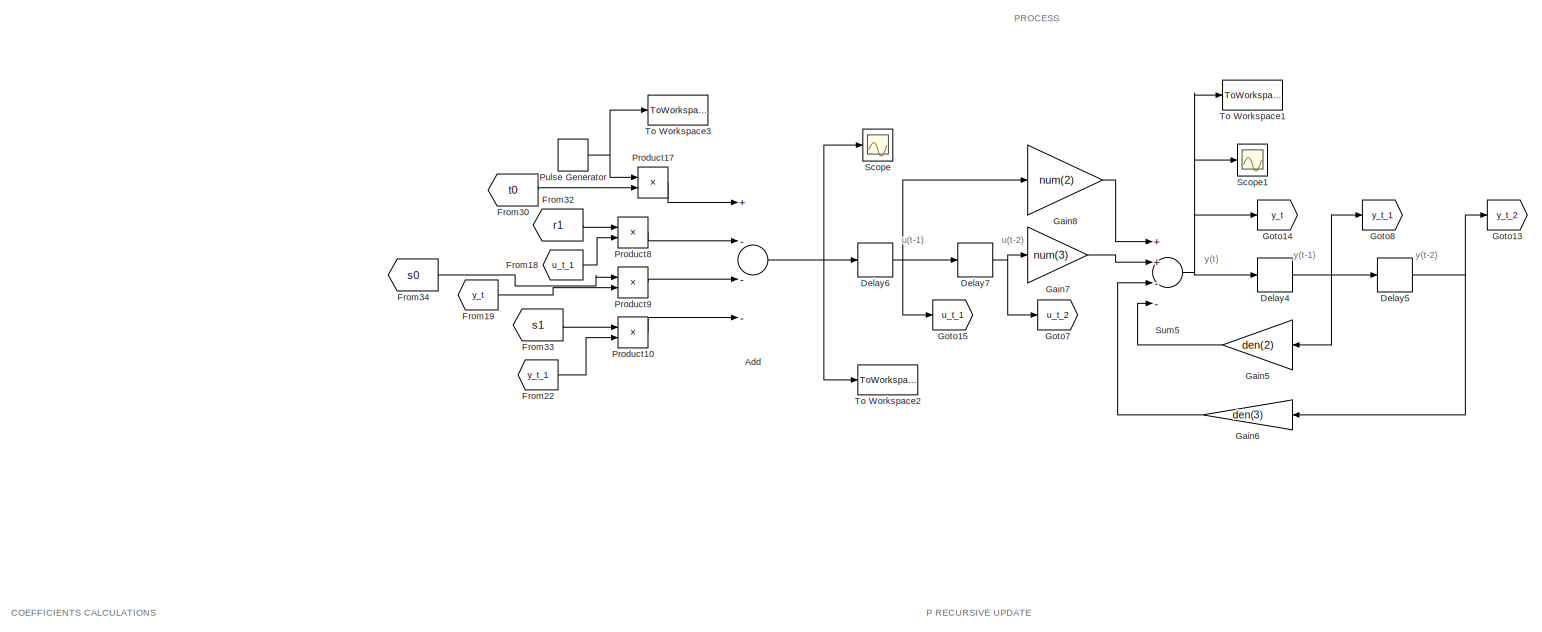
[diagram: root canvas - part 1/4, top left region]
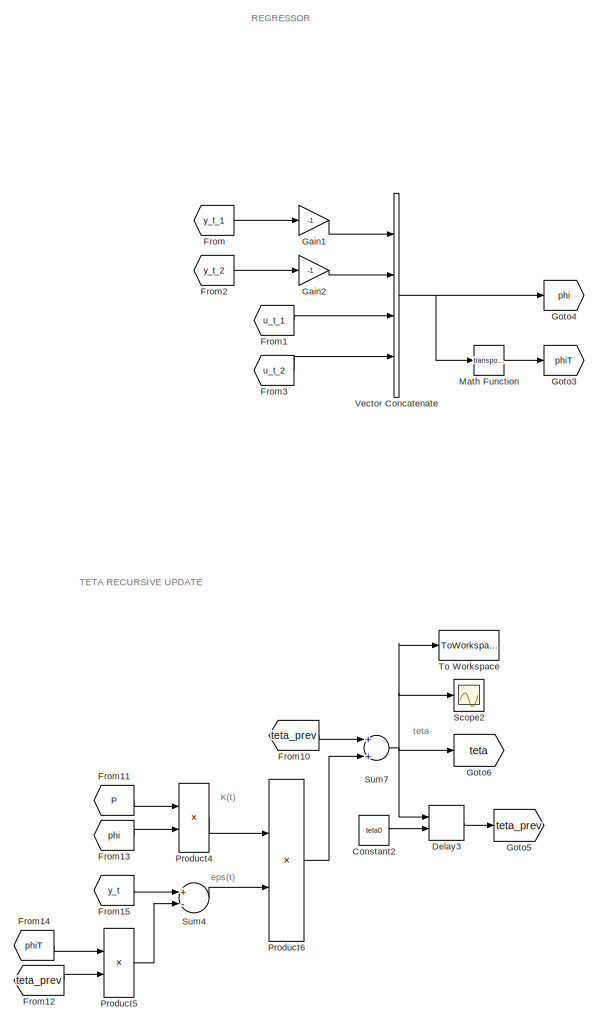
[diagram: root canvas - part 2/4, top right region]
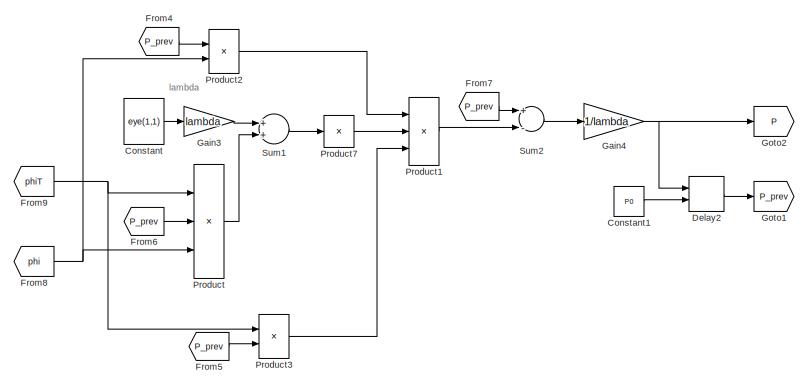
[diagram: root canvas - part 3/4, central region]
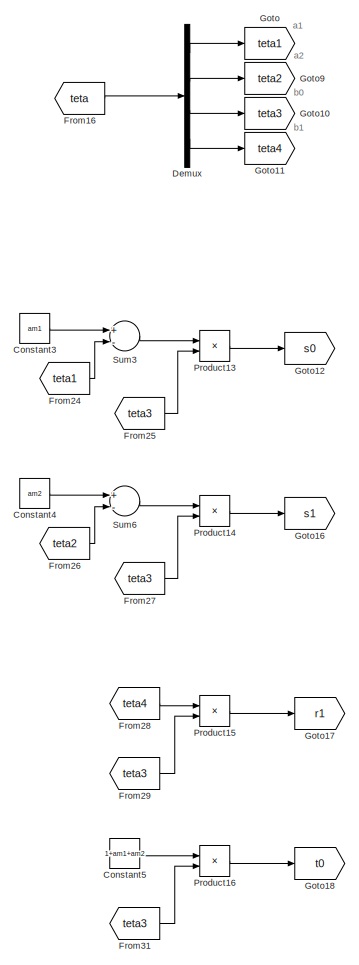
[diagram: root canvas - part 4/4, bottom left region]
MODEL slx_5befd267f8d2
KIND model
CONFIG AbsTol = auto
CONFIG EnableMultiTasking = off
CONFIG FixedStep = auto
CONFIG MaxStep = auto
CONFIG MinStep = auto
CONFIG RelTol = 1e-3
CONFIG SampleTimeConstraint = Unconstrained
CONFIG Solver = VariableStepAuto
CONFIG SolverName = VariableStepAuto
CONFIG StartTime = 0.0
CONFIG StopTime = 200
BLOCK [Sum] Add
  InputSameDT = off
  Inputs = +---
  OutDataTypeStr = Inherit: Inherit via internal rule
  Ports = [4, 1]
  SaturateOnIntegerOverflow = off
BLOCK [Constant] Constant
  Value = eye(1,1)
BLOCK [Constant] Constant1
  Value = P0
BLOCK [Constant] Constant2
  Value = teta0
BLOCK [Constant] Constant3
  Value = am1
BLOCK [Constant] Constant4
  Value = am2
BLOCK [Constant] Constant5
  Value = 1+am1+am2
BLOCK [Delay] Delay2
  DelayLength = 1
  InitialCondition = 0
  InitialConditionSource = Input port
  InputPortMap = u0,p4
  Ports = [2, 1]
BLOCK [Delay] Delay3
  DelayLength = 1
  InitialCondition = 0
  InitialConditionSource = Input port
  InputPortMap = u0,p4
  Ports = [2, 1]
BLOCK [Delay] Delay4
  DelayLength = 1
  InitialCondition = 0
  InputPortMap = u0
  Ports = [1, 1]
BLOCK [Delay] Delay5
  DelayLength = 1
  InitialCondition = 0
  InputPortMap = u0
  Ports = [1, 1]
BLOCK [Delay] Delay6
  DelayLength = 1
  InitialCondition = 0
  InputPortMap = u0
  Ports = [1, 1]
BLOCK [Delay] Delay7
  DelayLength = 1
  InitialCondition = 0
  InputPortMap = u0
  Ports = [1, 1]
BLOCK [Demux] Demux
  DisplayOption = bar
  Ports = [1, 4]
BLOCK [From] From
  GotoTag = y_t_1
BLOCK [From] From1
  GotoTag = u_t_1
BLOCK [From] From10
  GotoTag = teta_prev
BLOCK [From] From11
  GotoTag = P
BLOCK [From] From12
  GotoTag = teta_prev
BLOCK [From] From13
  GotoTag = phi
BLOCK [From] From14
  GotoTag = phiT
BLOCK [From] From15
  GotoTag = y_t
BLOCK [From] From16
  GotoTag = teta
BLOCK [From] From18
  GotoTag = u_t_1
BLOCK [From] From19
  GotoTag = y_t
BLOCK [From] From2
  GotoTag = y_t_2
BLOCK [From] From22
  GotoTag = y_t_1
BLOCK [From] From24
  GotoTag = teta1
BLOCK [From] From25
  GotoTag = teta3
BLOCK [From] From26
  GotoTag = teta2
BLOCK [From] From27
  GotoTag = teta3
BLOCK [From] From28
  GotoTag = teta4
BLOCK [From] From29
  GotoTag = teta3
BLOCK [From] From3
  GotoTag = u_t_2
BLOCK [From] From30
  GotoTag = t0
BLOCK [From] From31
  GotoTag = teta3
BLOCK [From] From32
  GotoTag = r1
BLOCK [From] From33
  GotoTag = s1
BLOCK [From] From34
  GotoTag = s0
BLOCK [From] From4
  GotoTag = P_prev
BLOCK [From] From5
  GotoTag = P_prev
BLOCK [From] From6
  GotoTag = P_prev
BLOCK [From] From7
  GotoTag = P_prev
BLOCK [From] From8
  GotoTag = phi
BLOCK [From] From9
  GotoTag = phiT
BLOCK [Gain] Gain1
  Gain = -1
  OutDataTypeStr = Inherit: Inherit via internal rule
  ParamDataTypeStr = Inherit: Inherit via internal rule
  SaturateOnIntegerOverflow = off
BLOCK [Gain] Gain2
  Gain = -1
  OutDataTypeStr = Inherit: Inherit via internal rule
  ParamDataTypeStr = Inherit: Inherit via internal rule
  SaturateOnIntegerOverflow = off
BLOCK [Gain] Gain3
  Gain = lambda
  OutDataTypeStr = Inherit: Inherit via internal rule
  ParamDataTypeStr = Inherit: Inherit via internal rule
  SaturateOnIntegerOverflow = off
BLOCK [Gain] Gain4
  Gain = 1/lambda
  OutDataTypeStr = Inherit: Inherit via internal rule
  ParamDataTypeStr = Inherit: Inherit via internal rule
  SaturateOnIntegerOverflow = off
BLOCK [Gain] Gain5
  Gain = den(2)
  OutDataTypeStr = Inherit: Inherit via internal rule
  ParamDataTypeStr = Inherit: Inherit via internal rule
  SaturateOnIntegerOverflow = off
BLOCK [Gain] Gain6
  Gain = den(3)
  OutDataTypeStr = Inherit: Inherit via internal rule
  ParamDataTypeStr = Inherit: Inherit via internal rule
  SaturateOnIntegerOverflow = off
BLOCK [Gain] Gain7
  Gain = num(3)
  OutDataTypeStr = Inherit: Inherit via internal rule
  ParamDataTypeStr = Inherit: Inherit via internal rule
  SaturateOnIntegerOverflow = off
BLOCK [Gain] Gain8
  Gain = num(2)
  OutDataTypeStr = Inherit: Inherit via internal rule
  ParamDataTypeStr = Inherit: Inherit via internal rule
  SaturateOnIntegerOverflow = off
BLOCK [Goto] Goto
  GotoTag = teta1
BLOCK [Goto] Goto1
  GotoTag = P_prev
BLOCK [Goto] Goto10
  GotoTag = teta3
BLOCK [Goto] Goto11
  GotoTag = teta4
BLOCK [Goto] Goto12
  GotoTag = s0
BLOCK [Goto] Goto13
  GotoTag = y_t_2
BLOCK [Goto] Goto14
  GotoTag = y_t
BLOCK [Goto] Goto15
  GotoTag = u_t_1
BLOCK [Goto] Goto16
  GotoTag = s1
BLOCK [Goto] Goto17
  GotoTag = r1
BLOCK [Goto] Goto18
  GotoTag = t0
BLOCK [Goto] Goto2
  GotoTag = P
BLOCK [Goto] Goto3
  GotoTag = phiT
BLOCK [Goto] Goto4
  GotoTag = phi
BLOCK [Goto] Goto5
  GotoTag = teta_prev
BLOCK [Goto] Goto6
  GotoTag = teta
BLOCK [Goto] Goto7
  GotoTag = u_t_2
BLOCK [Goto] Goto8
  GotoTag = y_t_1
BLOCK [Goto] Goto9
  GotoTag = teta2
BLOCK [Math] Math Function
  Operator = transpose
  Ports = [1, 1]
BLOCK [Product] Product
  InputSameDT = off
  Inputs = 3
  Multiplication = Matrix(*)
  OutDataTypeStr = Inherit: Inherit via internal rule
  Ports = [3, 1]
  RndMeth = Floor
  SaturateOnIntegerOverflow = off
BLOCK [Product] Product1
  InputSameDT = off
  Inputs = 3
  Multiplication = Matrix(*)
  OutDataTypeStr = Inherit: Inherit via internal rule
  Ports = [3, 1]
  RndMeth = Floor
  SaturateOnIntegerOverflow = off
BLOCK [Product] Product10
  InputSameDT = off
  OutDataTypeStr = Inherit: Inherit via internal rule
  Ports = [2, 1]
  RndMeth = Floor
  SaturateOnIntegerOverflow = off
BLOCK [Product] Product13
  InputSameDT = off
  Inputs = */
  OutDataTypeStr = Inherit: Inherit via internal rule
  Ports = [2, 1]
  RndMeth = Floor
  SaturateOnIntegerOverflow = off
BLOCK [Product] Product14
  InputSameDT = off
  Inputs = */
  OutDataTypeStr = Inherit: Inherit via internal rule
  Ports = [2, 1]
  RndMeth = Floor
  SaturateOnIntegerOverflow = off
BLOCK [Product] Product15
  InputSameDT = off
  Inputs = */
  OutDataTypeStr = Inherit: Inherit via internal rule
  Ports = [2, 1]
  RndMeth = Floor
  SaturateOnIntegerOverflow = off
BLOCK [Product] Product16
  InputSameDT = off
  Inputs = */
  OutDataTypeStr = Inherit: Inherit via internal rule
  Ports = [2, 1]
  RndMeth = Floor
  SaturateOnIntegerOverflow = off
BLOCK [Product] Product17
  InputSameDT = off
  OutDataTypeStr = Inherit: Inherit via internal rule
  Ports = [2, 1]
  RndMeth = Floor
  SaturateOnIntegerOverflow = off
BLOCK [Product] Product2
  InputSameDT = off
  Multiplication = Matrix(*)
  OutDataTypeStr = Inherit: Inherit via internal rule
  Ports = [2, 1]
  RndMeth = Floor
  SaturateOnIntegerOverflow = off
BLOCK [Product] Product3
  InputSameDT = off
  Multiplication = Matrix(*)
  OutDataTypeStr = Inherit: Inherit via internal rule
  Ports = [2, 1]
  RndMeth = Floor
  SaturateOnIntegerOverflow = off
BLOCK [Product] Product4
  InputSameDT = off
  Multiplication = Matrix(*)
  OutDataTypeStr = Inherit: Inherit via internal rule
  Ports = [2, 1]
  RndMeth = Floor
  SaturateOnIntegerOverflow = off
BLOCK [Product] Product5
  InputSameDT = off
  Multiplication = Matrix(*)
  OutDataTypeStr = Inherit: Inherit via internal rule
  Ports = [2, 1]
  RndMeth = Floor
  SaturateOnIntegerOverflow = off
BLOCK [Product] Product6
  InputSameDT = off
  Multiplication = Matrix(*)
  OutDataTypeStr = Inherit: Inherit via internal rule
  Ports = [2, 1]
  RndMeth = Floor
  SaturateOnIntegerOverflow = off
BLOCK [Product] Product7
  InputSameDT = off
  Inputs = /
  Multiplication = Matrix(*)
  OutDataTypeStr = Inherit: Inherit via internal rule
  Ports = [1, 1]
  RndMeth = Floor
  SaturateOnIntegerOverflow = off
BLOCK [Product] Product8
  InputSameDT = off
  OutDataTypeStr = Inherit: Inherit via internal rule
  Ports = [2, 1]
  RndMeth = Floor
  SaturateOnIntegerOverflow = off
BLOCK [Product] Product9
  InputSameDT = off
  OutDataTypeStr = Inherit: Inherit via internal rule
  Ports = [2, 1]
  RndMeth = Floor
  SaturateOnIntegerOverflow = off
BLOCK [DiscretePulseGenerator] Pulse Generator
  Period = 40
  Ports = [0, 1]
  PulseWidth = 20
BLOCK [Scope] Scope
  Floating = off
  NumInputPorts = 1
  Ports = [1]
  ScopeSpecificationString = Simulink.scopes.TimeScopeBlockCfg('CurrentConfiguration', extmgr.ConfigurationSet(extmgr.Configuration('Core','General UI',true),extmgr.Configuration('Core','Source UI',true),extmgr.Configuration('Sources','WiredSimulink',true,'DataLoggingVariableName','ScopeData1'),extmgr.Configuration('Visuals','Time Domain',true,'SerializedDisplays',{struct('MinYLimReal','-0.5898','MaxYLimReal','1.15015','YLabe...<+1366ch>
BLOCK [Scope] Scope1
  Floating = off
  NumInputPorts = 1
  Ports = [1]
  ScopeSpecificationString = Simulink.scopes.TimeScopeBlockCfg('CurrentConfiguration', extmgr.ConfigurationSet(extmgr.Configuration('Core','General UI',true),extmgr.Configuration('Core','Source UI',true),extmgr.Configuration('Sources','WiredSimulink',true),extmgr.Configuration('Visuals','Time Domain',true,'SerializedDisplays',{struct('MinYLimReal','-0.18302','MaxYLimReal','1.64718','YLabelReal','','MinYLimMag','0.00000','MaxY...<+1324ch>
BLOCK [Scope] Scope2
  Floating = off
  NumInputPorts = 1
  Ports = [1]
  ScopeSpecificationString = Simulink.scopes.TimeScopeBlockCfg('CurrentConfiguration', extmgr.ConfigurationSet(extmgr.Configuration('Core','General UI',true),extmgr.Configuration('Core','Source UI',true),extmgr.Configuration('Sources','WiredSimulink',true,'DataLoggingVariableName','ScopeData2'),extmgr.Configuration('Visuals','Time Domain',true,'SerializedDisplays',{struct('MinYLimReal','-0.32487','MaxYLimReal','1.14721','YLab...<+1392ch>
BLOCK [Sum] Sum1
  InputSameDT = off
  OutDataTypeStr = Inherit: Inherit via internal rule
  Ports = [2, 1]
  SaturateOnIntegerOverflow = off
BLOCK [Sum] Sum2
  InputSameDT = off
  Inputs = +-
  OutDataTypeStr = Inherit: Inherit via internal rule
  Ports = [2, 1]
  SaturateOnIntegerOverflow = off
BLOCK [Sum] Sum3
  InputSameDT = off
  Inputs = +-
  OutDataTypeStr = Inherit: Inherit via internal rule
  Ports = [2, 1]
  SaturateOnIntegerOverflow = off
BLOCK [Sum] Sum4
  InputSameDT = off
  Inputs = +-
  OutDataTypeStr = Inherit: Inherit via internal rule
  Ports = [2, 1]
  SaturateOnIntegerOverflow = off
BLOCK [Sum] Sum5
  InputSameDT = off
  Inputs = ++--
  OutDataTypeStr = Inherit: Inherit via internal rule
  Ports = [4, 1]
  SaturateOnIntegerOverflow = off
BLOCK [Sum] Sum6
  InputSameDT = off
  Inputs = +-
  OutDataTypeStr = Inherit: Inherit via internal rule
  Ports = [2, 1]
  SaturateOnIntegerOverflow = off
BLOCK [Sum] Sum7
  InputSameDT = off
  OutDataTypeStr = Inherit: Inherit via internal rule
  Ports = [2, 1]
  SaturateOnIntegerOverflow = off
BLOCK [ToWorkspace] To Workspace
  FixptAsFi = on
  MaxDataPoints = inf
  Ports = [1]
  SampleTime = -1
  VariableName = teta_out
BLOCK [ToWorkspace] To Workspace1
  FixptAsFi = on
  MaxDataPoints = inf
  Ports = [1]
  SampleTime = -1
  VariableName = y_out
BLOCK [ToWorkspace] To Workspace2
  FixptAsFi = on
  MaxDataPoints = inf
  Ports = [1]
  SampleTime = -1
  VariableName = u_out
BLOCK [ToWorkspace] To Workspace3
  FixptAsFi = on
  MaxDataPoints = inf
  Ports = [1]
  SampleTime = -1
  VariableName = uc_out
BLOCK [Concatenate] Vector Concatenate
  NumInputs = 4
  Ports = [4, 1]
ANNOTATION (root): COEFFICIENTS CALCULATIONS
ANNOTATION (root): P RECURSIVE UPDATE
ANNOTATION (root): PROCESS
ANNOTATION (root): REGRESSOR
ANNOTATION (root): TETA RECURSIVE UPDATE
ANNOTATION (root): K(t)
ANNOTATION (root): a1
ANNOTATION (root): a2
ANNOTATION (root): b0
ANNOTATION (root): b1
ANNOTATION (root): eps(t)
ANNOTATION (root): lambda
ANNOTATION (root): teta
ANNOTATION (root): u(t-1)
ANNOTATION (root): u(t-2)
ANNOTATION (root): y(t)
ANNOTATION (root): y(t-1)
ANNOTATION (root): y(t-2)
NET Add:1 -> Delay6:1, Scope:1, To Workspace2:1
LINE Constant1:1 -> Delay2:2
LINE Constant2:1 -> Delay3:2
LINE Constant3:1 -> Sum3:1
LINE Constant4:1 -> Sum6:1
LINE Constant5:1 -> Product16:1
LINE Constant:1 -> Gain3:1
LINE Delay2:1 -> Goto1:1
LINE Delay3:1 -> Goto5:1
NET Delay4:1 -> Delay5:1, Gain5:1, Goto8:1
NET Delay5:1 -> Gain6:1, Goto13:1
NET Delay6:1 -> Delay7:1, Gain8:1, Goto15:1
NET Delay7:1 -> Gain7:1, Goto7:1
LINE Demux:1 -> Goto:1
LINE Demux:2 -> Goto9:1
LINE Demux:3 -> Goto10:1
LINE Demux:4 -> Goto11:1
LINE From10:1 -> Sum7:1
LINE From11:1 -> Product4:1
LINE From12:1 -> Product5:2
LINE From13:1 -> Product4:2
LINE From14:1 -> Product5:1
LINE From15:1 -> Sum4:1
LINE From16:1 -> Demux:1
LINE From18:1 -> Product8:2
LINE From19:1 -> Product9:2
LINE From1:1 -> Vector Concatenate:3
LINE From22:1 -> Product10:2
LINE From24:1 -> Sum3:2
LINE From25:1 -> Product13:2
LINE From26:1 -> Sum6:2
LINE From27:1 -> Product14:2
LINE From28:1 -> Product15:1
LINE From29:1 -> Product15:2
LINE From2:1 -> Gain2:1
LINE From30:1 -> Product17:2
LINE From31:1 -> Product16:2
LINE From32:1 -> Product8:1
LINE From33:1 -> Product10:1
LINE From34:1 -> Product9:1
LINE From3:1 -> Vector Concatenate:4
LINE From4:1 -> Product2:1
LINE From5:1 -> Product3:2
LINE From6:1 -> Product:2
LINE From7:1 -> Sum2:1
NET From8:1 -> Product2:2, Product:3
NET From9:1 -> Product3:1, Product:1
LINE From:1 -> Gain1:1
LINE Gain1:1 -> Vector Concatenate:1
LINE Gain2:1 -> Vector Concatenate:2
LINE Gain3:1 -> Sum1:1
NET Gain4:1 -> Delay2:1, Goto2:1
LINE Gain5:1 -> Sum5:4
LINE Gain6:1 -> Sum5:3
LINE Gain7:1 -> Sum5:2
LINE Gain8:1 -> Sum5:1
LINE Math Function:1 -> Goto3:1
LINE Product10:1 -> Add:4
LINE Product13:1 -> Goto12:1
LINE Product14:1 -> Goto16:1
LINE Product15:1 -> Goto17:1
LINE Product16:1 -> Goto18:1
LINE Product17:1 -> Add:1
LINE Product1:1 -> Sum2:2
LINE Product2:1 -> Product1:1
LINE Product3:1 -> Product1:3
LINE Product4:1 -> Product6:1
LINE Product5:1 -> Sum4:2
LINE Product6:1 -> Sum7:2
LINE Product7:1 -> Product1:2
LINE Product8:1 -> Add:2
LINE Product9:1 -> Add:3
LINE Product:1 -> Sum1:2
NET Pulse Generator:1 -> Product17:1, To Workspace3:1
LINE Sum1:1 -> Product7:1
LINE Sum2:1 -> Gain4:1
LINE Sum3:1 -> Product13:1
LINE Sum4:1 -> Product6:2
NET Sum5:1 -> Delay4:1, Goto14:1, Scope1:1, To Workspace1:1
LINE Sum6:1 -> Product14:1
NET Sum7:1 -> Delay3:1, Goto6:1, Scope2:1, To Workspace:1
NET Vector Concatenate:1 -> Goto4:1, Math Function:1
note: NET lines group one-source signal fan-out (src -> all destinations, sorted); 1:1 wires keep LINE
